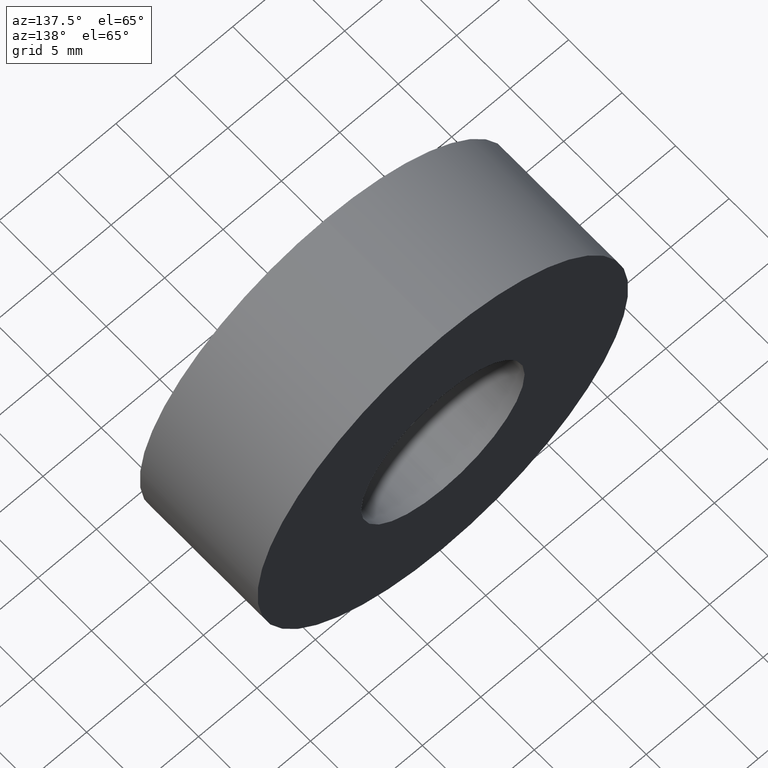
[diagram: clean part render]
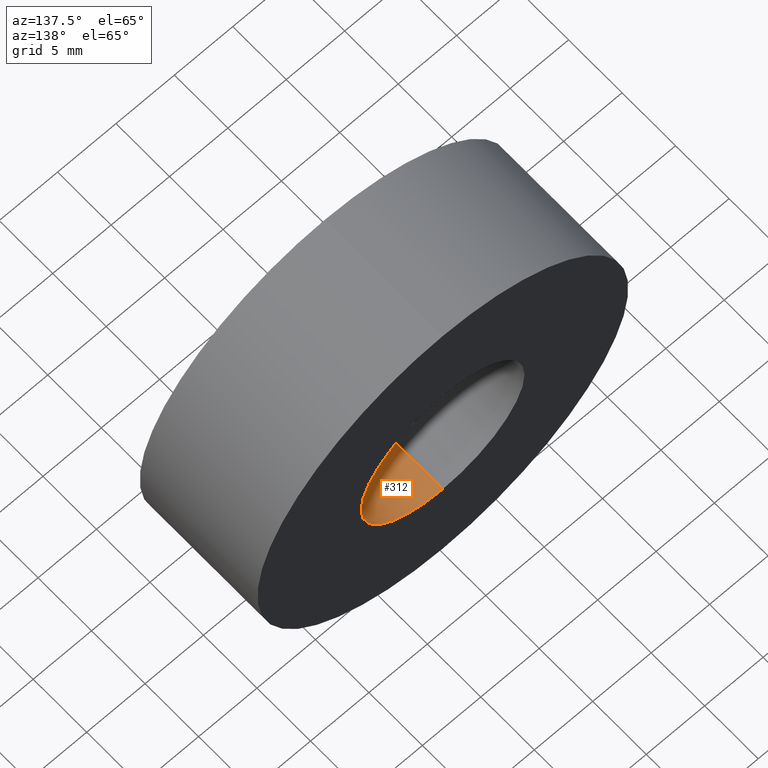
[diagram: same view with one face highlighted and labeled with its STEP entity id]
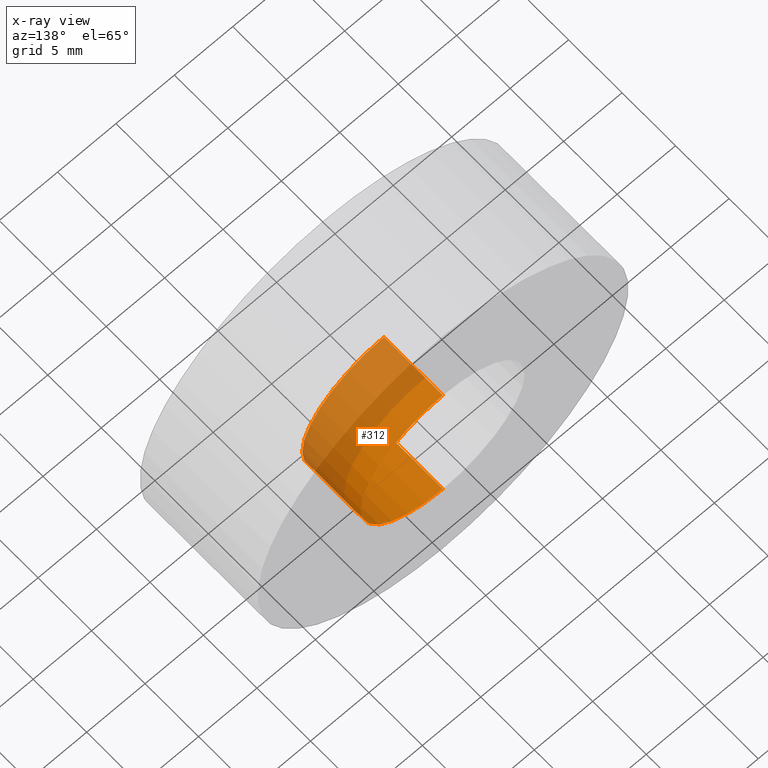
[diagram: x-ray of the same camera — body ghosted, the highlighted face saturated]
A machine part, auxiliary view. The second image highlights one B-rep face of the part: STEP entity #312.
The next image is the same camera in x-ray: the body ghosted, the highlighted face saturated — about 53% of this face is hidden behind the body in this view.
In plain terms, the highlighted cylindrical surface (partial cylindrical patch) has radius 7 mm, axis along (-0, 1, -0).
Its self-contained STEP definition (entity closure, byte-faithful):
#2 = EDGE_LOOP ( 'NONE', ( #32, #176, #52, #144 ) ) ;
#13 = CIRCLE ( 'NONE', #319, 7.000000000000006200 ) ;
#17 = DIRECTION ( 'NONE',  ( 0.0000000000000000000, 0.0000000000000000000, 1.000000000000000000 ) ) ;
#25 = VECTOR ( 'NONE', #190, 1000.000000000000000 ) ;
#29 = EDGE_CURVE ( 'NONE', #48, #165, #303, .T. ) ;
#32 = ORIENTED_EDGE ( 'NONE', *, *, #304, .F. ) ;
#48 = VERTEX_POINT ( 'NONE', #97 ) ;
#52 = ORIENTED_EDGE ( 'NONE', *, *, #29, .T. ) ;
#65 = FACE_OUTER_BOUND ( 'NONE', #2, .T. ) ;
#78 = CARTESIAN_POINT ( 'NONE',  ( 8.572527594031480100E-016, 60.02082041425541100, -7.000000000000006200 ) ) ;
#80 = EDGE_CURVE ( 'NONE', #165, #340, #119, .T. ) ;
#97 = CARTESIAN_POINT ( 'NONE',  ( 0.0000000000000000000, 5.499999999999998200, 7.000000000000006200 ) ) ;
#119 = CIRCLE ( 'NONE', #198, 7.000000000000007100 ) ;
#128 = CARTESIAN_POINT ( 'NONE',  ( 8.572527594031480100E-016, 5.499999999999998200, -7.000000000000006200 ) ) ;
#129 = CARTESIAN_POINT ( 'NONE',  ( 0.0000000000000000000, 10.99999999999999600, 0.0000000000000000000 ) ) ;
#132 = DIRECTION ( 'NONE',  ( -0.0000000000000000000, 1.000000000000000000, -0.0000000000000000000 ) ) ;
#144 = ORIENTED_EDGE ( 'NONE', *, *, #80, .T. ) ;
#165 = VERTEX_POINT ( 'NONE', #260 ) ;
#169 = VERTEX_POINT ( 'NONE', #128 ) ;
#176 = ORIENTED_EDGE ( 'NONE', *, *, #375, .F. ) ;
#181 = AXIS2_PLACEMENT_3D ( 'NONE', #294, #132, #189 ) ;
#189 = DIRECTION ( 'NONE',  ( 0.0000000000000000000, 0.0000000000000000000, 1.000000000000000000 ) ) ;
#190 = DIRECTION ( 'NONE',  ( -0.0000000000000000000, 1.000000000000000000, -0.0000000000000000000 ) ) ;
#197 = DIRECTION ( 'NONE',  ( -0.0000000000000000000, 1.000000000000000000, -0.0000000000000000000 ) ) ;
#198 = AXIS2_PLACEMENT_3D ( 'NONE', #129, #275, #366 ) ;
#260 = CARTESIAN_POINT ( 'NONE',  ( 0.0000000000000000000, 10.99999999999999600, 7.000000000000007100 ) ) ;
#275 = DIRECTION ( 'NONE',  ( -0.0000000000000000000, 1.000000000000000000, -0.0000000000000000000 ) ) ;
#289 = LINE ( 'NONE', #78, #376 ) ;
#294 = CARTESIAN_POINT ( 'NONE',  ( 0.0000000000000000000, 60.02082041425541100, 0.0000000000000000000 ) ) ;
#303 = LINE ( 'NONE', #393, #25 ) ;
#304 = EDGE_CURVE ( 'NONE', #169, #340, #289, .T. ) ;
#312 = ADVANCED_FACE ( 'NONE', ( #65 ), #420, .F. ) ;
#319 = AXIS2_PLACEMENT_3D ( 'NONE', #392, #197, #17 ) ;
#340 = VERTEX_POINT ( 'NONE', #410 ) ;
#350 = DIRECTION ( 'NONE',  ( -0.0000000000000000000, 1.000000000000000000, -0.0000000000000000000 ) ) ;
#366 = DIRECTION ( 'NONE',  ( 0.0000000000000000000, 0.0000000000000000000, 1.000000000000000000 ) ) ;
#375 = EDGE_CURVE ( 'NONE', #48, #169, #13, .T. ) ;
#376 = VECTOR ( 'NONE', #350, 1000.000000000000000 ) ;
#392 = CARTESIAN_POINT ( 'NONE',  ( 0.0000000000000000000, 5.499999999999998200, 0.0000000000000000000 ) ) ;
#393 = CARTESIAN_POINT ( 'NONE',  ( 0.0000000000000000000, 60.02082041425541100, 7.000000000000006200 ) ) ;
#410 = CARTESIAN_POINT ( 'NONE',  ( 8.572527594031482100E-016, 10.99999999999999600, -7.000000000000008000 ) ) ;
#420 = CYLINDRICAL_SURFACE ( 'NONE', #181, 7.000000000000006200 ) ;